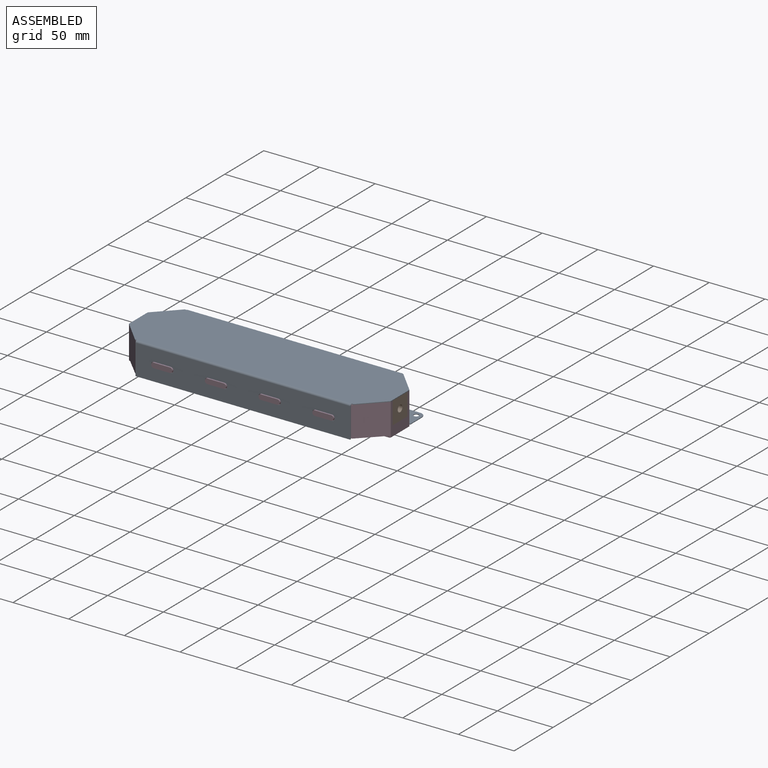
[diagram: assembled view]
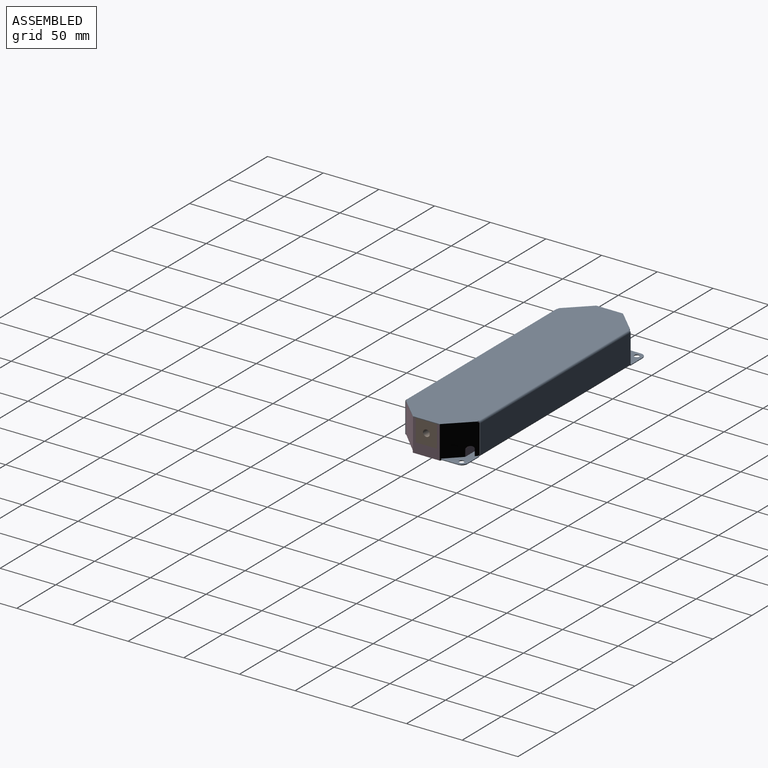
[diagram: assembled view, second angle]
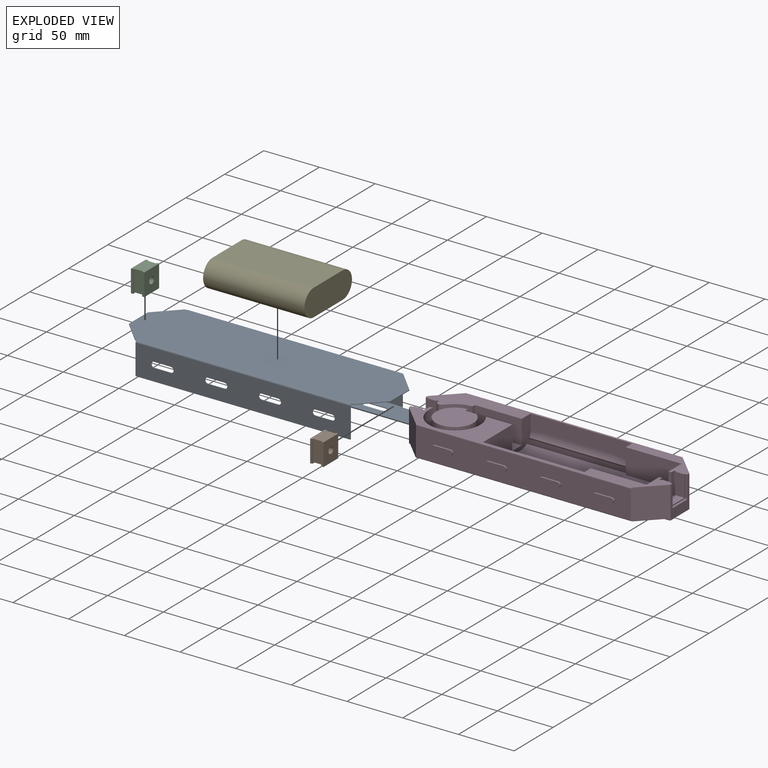
[diagram: exploded view]
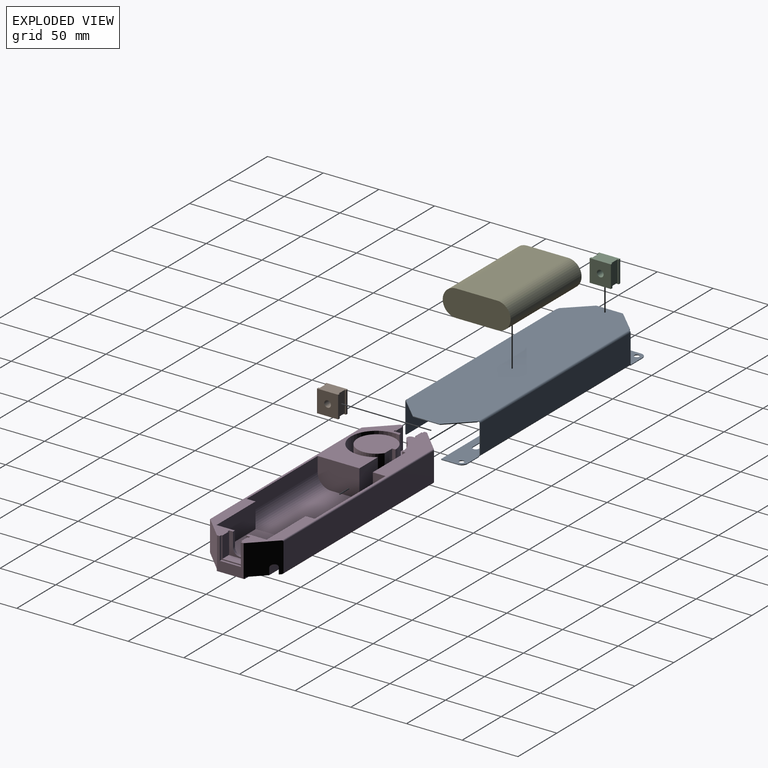
[diagram: exploded view, second angle]
ASSEMBLY  parts=4 mates=3
PART A: 15 faces, bbox 19x12x20 mm
  f0: plane 20x19mm, normal (0,-1,0), area 57mm2, adj f1,f2,f3,f4,f5,f6,f9
  f1: plane 17x8mm, normal (0,0,-1), area 136mm2, adj f0,f4,f5,f7
  f2: plane 19x2mm, normal (0,0,-1), area 38mm2, adj f0,f3,f6,f8
  f3: plane 20x2mm, normal (1,0,0), area 40mm2, adj f0,f2,f8,f9
  f4: plane 19x8mm, normal (1,0,0), area 152mm2, adj f0,f1,f7,f9
  f5: plane 19x8mm, normal (-1,0,0), area 152mm2, adj f0,f1,f7,f9
  f6: plane 20x2mm, normal (-1,0,0), area 40mm2, adj f0,f2,f8,f9
  f7: plane 20x19mm, normal (0,1,0), area 57mm2, adj f1,f4,f5,f9,f10,f11,f12
  f8: plane 20x19mm, normal (0,1,0), area 351.7mm2, adj f2,f3,f6,f9,f13
  f9: plane 19x12mm, normal (0,0,1), area 212mm2, adj f0,f3,f4,f5,f6,f7,f8,f10
  f10: plane 20x2mm, normal (1,0,0), area 40mm2, adj f7,f9,f11,f14
  f11: plane 19x2mm, normal (0,0,-1), area 38mm2, adj f7,f10,f12,f14
  f12: plane 20x2mm, normal (-1,0,0), area 40mm2, adj f7,f9,f11,f14
  f13: cylinder r=3mm len=12mm, axis (0,1,0), area 226.2mm2, adj f8,f14
  f14: plane 20x19mm, normal (0,-1,0), area 351.7mm2, adj f9,f10,f11,f12,f13
PART B: same geometry as A
PART C: 122 faces, bbox 235x67.5x29 mm
  f0: plane 193x25.5mm, normal (0,-1,0), area 4596.9mm2, adj f13,f15,f100,f101,f102,f103,f104,f105
  f1: plane 193x25.5mm, normal (0,1,0), area 4921.5mm2, adj f14,f16,f98,f99
  f2: plane 198x1.5mm, normal (0,0,-1), area 294.8mm2, adj f10,f14,f98,f99
  f3: plane 233.6x12.8mm, normal (0,0,-1), area 2447.7mm2, adj f7,f11,f72,f73,f74,f75,f77,f78
  f4: plane 233.6x19.3mm, normal (0,0,-1), area 4136mm2, adj f8,f13,f100,f101
  f5: plane 235x27.35mm, normal (0,0,1), area 1912.1mm2, adj f16,f17,f18,f19,f23,f25,f28,f29
  f6: plane 235x39mm, normal (0,0,1), area 1987.2mm2, adj f15,f18,f19,f23,f24,f27,f28,f32
  f7: plane 233.6x1.5mm, normal (0,1,0), area 350.4mm2, adj f3,f9,f98,f99
  f8: plane 233.6x1.5mm, normal (0,-1,0), area 350.4mm2, adj f4,f9,f100,f101
  f9: plane 235x25.4mm, normal (0,0,-1), area 5968mm2, adj f7,f8,f23,f46,f98,f99,f100,f101
  f10: plane 198x6mm, normal (0,-1,0), area 1188mm2, adj f2,f12,f98,f99
  f11: plane 208x6mm, normal (0,1,0), area 1134.5mm2, adj f3,f12,f18,f19,f20,f98,f99
  f12: cylinder r=2.5mm len=208mm, axis (1,0,0), area 1161.7mm2, adj f10,f11,f18,f19,f92,f98,f99
  f13: cylinder r=1mm len=195mm, axis (1,0,0), area 304.3mm2, adj f0,f4,f100,f101
  f14: cylinder r=1mm len=195mm, axis (-1,0,0), area 304.3mm2, adj f1,f2,f98,f99
  f15: cylinder r=1mm len=195mm, axis (-1,0,0), area 304.3mm2, adj f0,f6,f100,f101
  f16: cylinder r=1mm len=195mm, axis (1,0,0), area 304.3mm2, adj f1,f5,f98,f99
  f17: cylinder r=23mm len=20.6mm, axis (0,0,1), area 401.2mm2, adj f5,f34,f38,f96
  f18: plane 61x25mm, normal (1,0,0), area 1200.5mm2, adj f5,f6,f11,f12,f20,f24,f25,f26
  f19: plane 61x25mm, normal (-1,0,0), area 444.8mm2, adj f5,f6,f11,f12,f20,f24,f25,f26
  f20: cylinder r=12mm len=91mm, axis (-1,0,0), area 680.1mm2, adj f11,f18,f19,f26
  f21: plane 6.16x0.6mm, normal (1,0,0), area 3.7mm2, adj f37,f38,f69,f94
  f22: plane 17.03x8mm, normal (0,0,1), area 136.2mm2, adj f60,f61,f62,f66
  f23: plane 29x24mm, normal (1,0,0), area 315.5mm2, adj f5,f6,f9,f47,f55,f68,f98,f100
  f24: plane 91x13mm, normal (0,1,0), area 1183mm2, adj f6,f18,f19,f91
  f25: plane 91x13mm, normal (0,-1,0), area 1183mm2, adj f5,f18,f19,f92
  f26: plane 91x37mm, normal (0,0,1), area 3367mm2, adj f18,f19,f20,f91
  f27: plane 50x22.5mm, normal (0,1,0), area 1125mm2, adj f6,f19,f28,f30
  f28: plane 45x22.5mm, normal (-1,0,0), area 801.8mm2, adj f5,f6,f27,f29,f30,f44,f45,f97
  f29: plane 50x22.5mm, normal (0,-1,0), area 1125mm2, adj f5,f19,f28,f30
  f30: plane 50x45mm, normal (0,0,1), area 2250mm2, adj f19,f27,f28,f29
  f31: plane 42x21.4mm, normal (0,-1,0), area 898.8mm2, adj f5,f18,f33,f34
  f32: plane 23.93x21.44mm, normal (0,1,0), area 508.3mm2, adj f6,f18,f33,f35,f96
  f33: plane 42x12mm, normal (0,0,1), area 391.6mm2, adj f18,f31,f32,f34,f96
  f34: plane 21.4x3.11mm, normal (1,0,0), area 64.2mm2, adj f5,f17,f31,f33,f96
  f35: cylinder r=23mm len=46mm, axis (0,0,1), area 1896.9mm2, adj f6,f32,f37,f96
  f36: cylinder r=17mm len=34mm, axis (0,0,1), area 2301.4mm2, adj f39,f40,f41,f42,f43
  f37: cylinder r=23mm len=20.6mm, axis (0,0,1), area 63.9mm2, adj f6,f21,f35,f57,f95
  f38: cylinder r=17mm len=20.6mm, axis (0,0,1), area 102.6mm2, adj f5,f17,f21,f69,f93,f95
  f39: plane 40x40mm, normal (0,0,1), area 348.7mm2, adj f36,f96
  f40: plane 21.4x3mm, normal (1,0,0), area 64.2mm2, adj f36,f41,f42,f43
  f41: plane 9.64x3mm, normal (0,0,1), area 19.7mm2, adj f36,f40,f42
  f42: plane 21.4x9.64mm, normal (0,1,0), area 206.4mm2, adj f36,f40,f41,f43
  f43: plane 34x34mm, normal (0,0,1), area 888.3mm2, adj f36,f40,f42
  f44: plane 12.85x2.5mm, normal (0,-1,0), area 32.1mm2, adj f5,f28,f52,f97
  f45: plane 12.85x2.5mm, normal (0,1,0), area 32.1mm2, adj f6,f28,f52,f97
  f46: plane 29x24mm, normal (-1,0,0), area 315.5mm2, adj f5,f6,f9,f58,f59,f67,f99,f101
  f47: plane 20x2mm, normal (0,-1,0), area 40mm2, adj f5,f23,f48,f68
  f48: plane 20x19.03mm, normal (1,0,0), area 57mm2, adj f5,f6,f47,f49,f54,f55,f56,f68
  f49: plane 19x8mm, normal (0,-1,0), area 152mm2, adj f5,f48,f50,f56
  f50: plane 20x19.03mm, normal (-1,0,0), area 57mm2, adj f5,f6,f49,f51,f53,f54,f56,f70
  f51: plane 20x2mm, normal (0,-1,0), area 40mm2, adj f5,f50,f52,f70
  f52: plane 20x19.03mm, normal (1,0,0), area 169.7mm2, adj f5,f6,f44,f45,f51,f53,f70,f97
  f53: plane 20x2mm, normal (0,1,0), area 40mm2, adj f6,f50,f52,f70
  f54: plane 19x8mm, normal (0,1,0), area 152mm2, adj f6,f48,f50,f56
  f55: plane 20x2mm, normal (0,1,0), area 40mm2, adj f6,f23,f48,f68
  f56: plane 17.03x8mm, normal (0,0,1), area 136.2mm2, adj f48,f49,f50,f54
  f57: plane 20x6.45mm, normal (-1,0,0), area 128.9mm2, adj f6,f37,f63,f69
  f58: plane 20x2mm, normal (0,-1,0), area 40mm2, adj f5,f46,f60,f67
  f59: plane 20x2mm, normal (0,1,0), area 40mm2, adj f6,f46,f60,f67
  f60: plane 20x19.03mm, normal (-1,0,0), area 57mm2, adj f5,f6,f22,f58,f59,f61,f66,f67
  f61: plane 19x8mm, normal (0,1,0), area 152mm2, adj f6,f22,f60,f62
  f62: plane 20x19.03mm, normal (1,0,0), area 57mm2, adj f5,f6,f22,f61,f63,f65,f66,f69
  f63: plane 20x2mm, normal (0,1,0), area 40mm2, adj f6,f57,f62,f69
  f64: plane 20x1.86mm, normal (-1,0,0), area 37.2mm2, adj f5,f65,f69,f93
  f65: plane 20x2mm, normal (0,-1,0), area 40mm2, adj f5,f62,f64,f69
  f66: plane 19x8mm, normal (0,-1,0), area 152mm2, adj f5,f22,f60,f62
  f67: plane 19.03x2mm, normal (0,0,1), area 38mm2, adj f46,f58,f59,f60
  f68: plane 19.03x2mm, normal (0,0,1), area 38mm2, adj f23,f47,f48,f55
  f69: plane 19.03x6.6mm, normal (0,0,1), area 43.4mm2, adj f21,f38,f57,f62,f63,f64,f65,f93
  f70: plane 19.03x2mm, normal (0,0,1), area 38mm2, adj f50,f51,f52,f53
  f71: plane 20x5mm, normal (0,0,-1), area 94.6mm2, adj f72,f73,f74,f75
  f72: plane 15x1.5mm, normal (0,-1,0), area 22.5mm2, adj f3,f71,f73,f74
  f73: cylinder r=2.5mm len=5mm, axis (0,0,1), area 11.8mm2, adj f3,f71,f72,f75
  f74: cylinder r=2.5mm len=5mm, axis (0,0,1), area 11.8mm2, adj f3,f71,f72,f75
  f75: plane 15x1.5mm, normal (0,1,0), area 22.5mm2, adj f3,f71,f73,f74
  f76: plane 20x5mm, normal (0,0,-1), area 94.6mm2, adj f77,f78,f79,f80
  f77: plane 15x1.5mm, normal (0,1,0), area 22.5mm2, adj f3,f76,f78,f79
  f78: cylinder r=2.5mm len=5mm, axis (0,0,1), area 11.8mm2, adj f3,f76,f77,f80
  f79: cylinder r=2.5mm len=5mm, axis (0,0,1), area 11.8mm2, adj f3,f76,f77,f80
  f80: plane 15x1.5mm, normal (0,-1,0), area 22.5mm2, adj f3,f76,f78,f79
  f81: plane 20x5mm, normal (0,0,-1), area 94.6mm2, adj f82,f83,f84,f85
  f82: plane 15x1.5mm, normal (0,-1,0), area 22.5mm2, adj f3,f81,f83,f84
  f83: cylinder r=2.5mm len=5mm, axis (0,0,1), area 11.8mm2, adj f3,f81,f82,f85
  f84: cylinder r=2.5mm len=5mm, axis (0,0,1), area 11.8mm2, adj f3,f81,f82,f85
  f85: plane 15x1.5mm, normal (0,1,0), area 22.5mm2, adj f3,f81,f83,f84
  f86: plane 20x5mm, normal (0,0,-1), area 94.6mm2, adj f87,f88,f89,f90
  f87: plane 15x1.5mm, normal (0,1,0), area 22.5mm2, adj f3,f86,f88,f89
  f88: cylinder r=2.5mm len=5mm, axis (0,0,1), area 11.8mm2, adj f3,f86,f87,f90
  f89: cylinder r=2.5mm len=5mm, axis (0,0,1), area 11.8mm2, adj f3,f86,f87,f90
  f90: plane 15x1.5mm, normal (0,-1,0), area 22.5mm2, adj f3,f86,f88,f89
  f91: cylinder r=12mm len=91mm, axis (1,0,0), area 1715.3mm2, adj f18,f19,f24,f26
  f92: cylinder r=12mm len=91mm, axis (-1,0,0), area 586.1mm2, adj f12,f18,f19,f25
  f93: cylinder r=3mm len=20mm, axis (0,0,1), area 128mm2, adj f5,f38,f64,f69
  f94: cylinder r=3mm len=6.16mm, axis (0,1,0), area 18.6mm2, adj f21,f95
  f95: torus R=20mm, axis (0,0,1), area 64.6mm2, adj f37,f38,f94,f96
  f96: torus R=20mm, axis (0,0,1), area 589.9mm2, adj f17,f32,f33,f34,f35,f39,f95
  f97: cylinder r=6mm len=12mm, axis (1,0,0), area 47.1mm2, adj f28,f44,f45,f52
  f98: plane 29x21mm, normal (0.71,0.71,0), area 761.3mm2, adj f1,f2,f3,f5,f7,f9,f10,f11
  f99: plane 29x21mm, normal (-0.71,0.71,0), area 761.3mm2, adj f1,f2,f3,f5,f7,f9,f10,f11
  f100: plane 29x21mm, normal (0.71,-0.71,0), area 817.6mm2, adj f0,f4,f6,f8,f9,f13,f15,f23
  f101: plane 29x21mm, normal (-0.71,-0.71,0), area 817.6mm2, adj f0,f4,f6,f8,f9,f13,f15,f46
  f102: plane 14.5x1.5mm, normal (0,0,1), area 21.8mm2, adj f0,f103,f105,f106
  f103: cylinder r=2.25mm len=4.5mm, axis (0,1,0), area 10.6mm2, adj f0,f102,f104,f106
  f104: plane 14.5x1.5mm, normal (0,0,-1), area 21.8mm2, adj f0,f103,f105,f106
  f105: cylinder r=2.25mm len=4.5mm, axis (0,1,0), area 10.6mm2, adj f0,f102,f104,f106
  f106: plane 19x4.5mm, normal (0,-1,0), area 81.2mm2, adj f102,f103,f104,f105
  f107: cylinder r=2.25mm len=4.5mm, axis (0,1,0), area 10.6mm2, adj f0,f108,f110,f111
  f108: plane 14.5x1.5mm, normal (0,0,-1), area 21.8mm2, adj f0,f107,f109,f111
  f109: cylinder r=2.25mm len=4.5mm, axis (0,1,0), area 10.6mm2, adj f0,f108,f110,f111
  f110: plane 14.5x1.5mm, normal (0,0,1), area 21.8mm2, adj f0,f107,f109,f111
  f111: plane 19x4.5mm, normal (0,-1,0), area 81.2mm2, adj f107,f108,f109,f110
  f112: plane 14.5x1.5mm, normal (0,0,-1), area 21.8mm2, adj f0,f113,f115,f116
  f113: cylinder r=2.25mm len=4.5mm, axis (0,1,0), area 10.6mm2, adj f0,f112,f114,f116
  f114: plane 14.5x1.5mm, normal (0,0,1), area 21.8mm2, adj f0,f113,f115,f116
  f115: cylinder r=2.25mm len=4.5mm, axis (0,1,0), area 10.6mm2, adj f0,f112,f114,f116
  f116: plane 19x4.5mm, normal (0,-1,0), area 81.2mm2, adj f112,f113,f114,f115
  f117: cylinder r=2.25mm len=4.5mm, axis (0,1,0), area 10.6mm2, adj f0,f118,f120,f121
  f118: plane 14.5x1.5mm, normal (0,0,-1), area 21.8mm2, adj f0,f117,f119,f121
  f119: cylinder r=2.25mm len=4.5mm, axis (0,1,0), area 10.6mm2, adj f0,f118,f120,f121
  f120: plane 14.5x1.5mm, normal (0,0,1), area 21.8mm2, adj f0,f117,f119,f121
  f121: plane 19x4.5mm, normal (0,-1,0), area 81.2mm2, adj f117,f118,f119,f120
PART D: 6 faces, bbox 61x24x91 mm
  f0: plane 91x37mm, normal (0,-1,0), area 3367mm2, adj f2,f3,f4,f5
  f1: plane 91x37mm, normal (0,1,0), area 3367mm2, adj f2,f3,f4,f5
  f2: plane 61x24mm, normal (0,0,1), area 1340.4mm2, adj f0,f1,f4,f5
  f3: plane 61x24mm, normal (0,0,-1), area 1340.4mm2, adj f0,f1,f4,f5
  f4: cylinder r=12mm len=91mm, axis (0,0,-1), area 3430.6mm2, adj f0,f1,f2,f3
  f5: cylinder r=12mm len=91mm, axis (0,0,-1), area 3430.6mm2, adj f0,f1,f2,f3
PLACE A rot(axis=(0,0,1),90deg) t=(105.5,0,29)mm
PLACE B rot(axis=(0,0,1),90deg) t=(-117.5,0,29)mm
PLACE C t=(0,0,1.5)mm
PLACE D rot(axis=(-0.58,-0.58,0.58),120deg) t=(53,0,16)mm
MATE fastened D.f1 <-> C.f26  axis (0,0,-1) through (7.5,0,4)mm
MATE fastened C.f22 <-> B.f1  axis (0,0,1) through (-111.5,0,10)mm
MATE fastened C.f56 <-> A.f1  axis (0,0,1) through (111.5,0,10)mm
